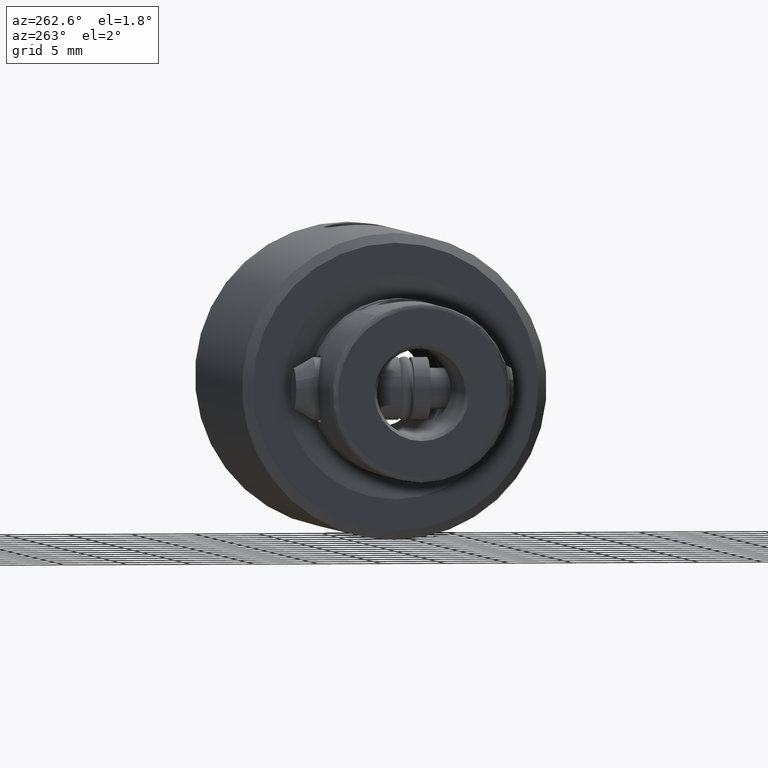
[diagram: clean part render]
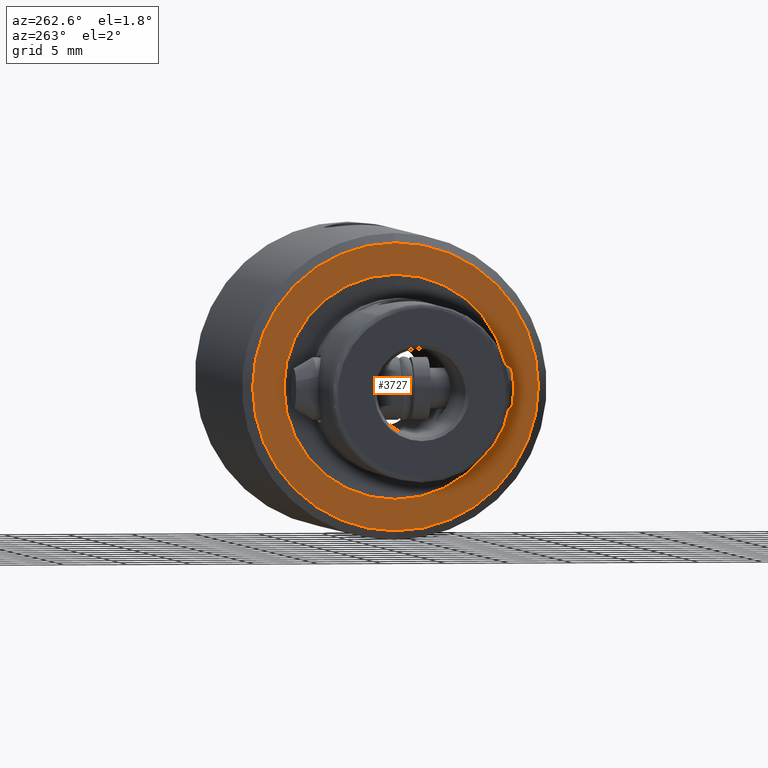
[diagram: same view with one face highlighted and labeled with its STEP entity id]
A machine part, auxiliary view. The second image highlights one B-rep face of the part: STEP entity #3727.
In plain terms, the highlighted planar face has unit normal (-1, 0, -0).
Its self-contained STEP definition (entity closure, byte-faithful):
#106 = VERTEX_POINT ( 'NONE', #3895 ) ;
#278 = DIRECTION ( 'NONE',  ( 0.0000000000000000000, 0.0000000000000000000, 1.000000000000000000 ) ) ;
#315 = DIRECTION ( 'NONE',  ( 1.000000000000000000, 0.0000000000000000000, 0.0000000000000000000 ) ) ;
#325 = EDGE_CURVE ( 'NONE', #1576, #106, #2771, .T. ) ;
#357 = DIRECTION ( 'NONE',  ( 1.000000000000000000, 0.0000000000000000000, 0.0000000000000000000 ) ) ;
#367 = DIRECTION ( 'NONE',  ( 0.0000000000000000000, 0.0000000000000000000, 1.000000000000000000 ) ) ;
#405 = CARTESIAN_POINT ( 'NONE',  ( 0.0000000000000000000, 0.0000000000000000000, 30.00000000000000000 ) ) ;
#557 = ORIENTED_EDGE ( 'NONE', *, *, #1213, .F. ) ;
#630 = DIRECTION ( 'NONE',  ( 0.0000000000000000000, 0.0000000000000000000, 1.000000000000000000 ) ) ;
#984 = ORIENTED_EDGE ( 'NONE', *, *, #1525, .T. ) ;
#1128 = VERTEX_POINT ( 'NONE', #2855 ) ;
#1136 = EDGE_LOOP ( 'NONE', ( #984, #3966 ) ) ;
#1213 = EDGE_CURVE ( 'NONE', #106, #1576, #2044, .T. ) ;
#1464 = DIRECTION ( 'NONE',  ( 0.0000000000000000000, 0.0000000000000000000, 1.000000000000000000 ) ) ;
#1509 = CARTESIAN_POINT ( 'NONE',  ( 8.795249112199732300, 0.0000000000000000000, 30.00000000000000000 ) ) ;
#1525 = EDGE_CURVE ( 'NONE', #3810, #1128, #2749, .T. ) ;
#1576 = VERTEX_POINT ( 'NONE', #1509 ) ;
#1588 = CARTESIAN_POINT ( 'NONE',  ( 0.0000000000000000000, 0.0000000000000000000, 30.00000000000000000 ) ) ;
#1657 = FACE_BOUND ( 'NONE', #2183, .T. ) ;
#1697 = EDGE_CURVE ( 'NONE', #1128, #3810, #2119, .T. ) ;
#1915 = PLANE ( 'NONE',  #3632 ) ;
#2044 = CIRCLE ( 'NONE', #2688, 8.795249112199730500 ) ;
#2119 = CIRCLE ( 'NONE', #2593, 11.25000000000000000 ) ;
#2183 = EDGE_LOOP ( 'NONE', ( #2849, #557 ) ) ;
#2300 = DIRECTION ( 'NONE',  ( 0.0000000000000000000, 0.0000000000000000000, 1.000000000000000000 ) ) ;
#2588 = DIRECTION ( 'NONE',  ( 1.000000000000000000, 0.0000000000000000000, 0.0000000000000000000 ) ) ;
#2593 = AXIS2_PLACEMENT_3D ( 'NONE', #2627, #630, #2962 ) ;
#2627 = CARTESIAN_POINT ( 'NONE',  ( 0.0000000000000000000, 0.0000000000000000000, 30.00000000000000000 ) ) ;
#2688 = AXIS2_PLACEMENT_3D ( 'NONE', #4223, #2300, #315 ) ;
#2749 = CIRCLE ( 'NONE', #3115, 11.25000000000000000 ) ;
#2771 = CIRCLE ( 'NONE', #4005, 8.795249112199730500 ) ;
#2849 = ORIENTED_EDGE ( 'NONE', *, *, #325, .F. ) ;
#2855 = CARTESIAN_POINT ( 'NONE',  ( 11.25000000000000000, 1.423651904008798300E-015, 30.00000000000000000 ) ) ;
#2962 = DIRECTION ( 'NONE',  ( 1.000000000000000000, 0.0000000000000000000, 0.0000000000000000000 ) ) ;
#3115 = AXIS2_PLACEMENT_3D ( 'NONE', #3442, #1464, #3763 ) ;
#3442 = CARTESIAN_POINT ( 'NONE',  ( 0.0000000000000000000, 0.0000000000000000000, 30.00000000000000000 ) ) ;
#3626 = CARTESIAN_POINT ( 'NONE',  ( -11.25000000000000000, 0.0000000000000000000, 30.00000000000000000 ) ) ;
#3632 = AXIS2_PLACEMENT_3D ( 'NONE', #1588, #278, #2588 ) ;
#3727 = ADVANCED_FACE ( 'NONE', ( #1657, #4139 ), #1915, .T. ) ;
#3763 = DIRECTION ( 'NONE',  ( 1.000000000000000000, 0.0000000000000000000, 0.0000000000000000000 ) ) ;
#3810 = VERTEX_POINT ( 'NONE', #3626 ) ;
#3895 = CARTESIAN_POINT ( 'NONE',  ( -8.795249112199732300, 1.077107367295899900E-015, 30.00000000000000000 ) ) ;
#3966 = ORIENTED_EDGE ( 'NONE', *, *, #1697, .T. ) ;
#4005 = AXIS2_PLACEMENT_3D ( 'NONE', #405, #367, #357 ) ;
#4139 = FACE_OUTER_BOUND ( 'NONE', #1136, .T. ) ;
#4223 = CARTESIAN_POINT ( 'NONE',  ( 0.0000000000000000000, 0.0000000000000000000, 30.00000000000000000 ) ) ;